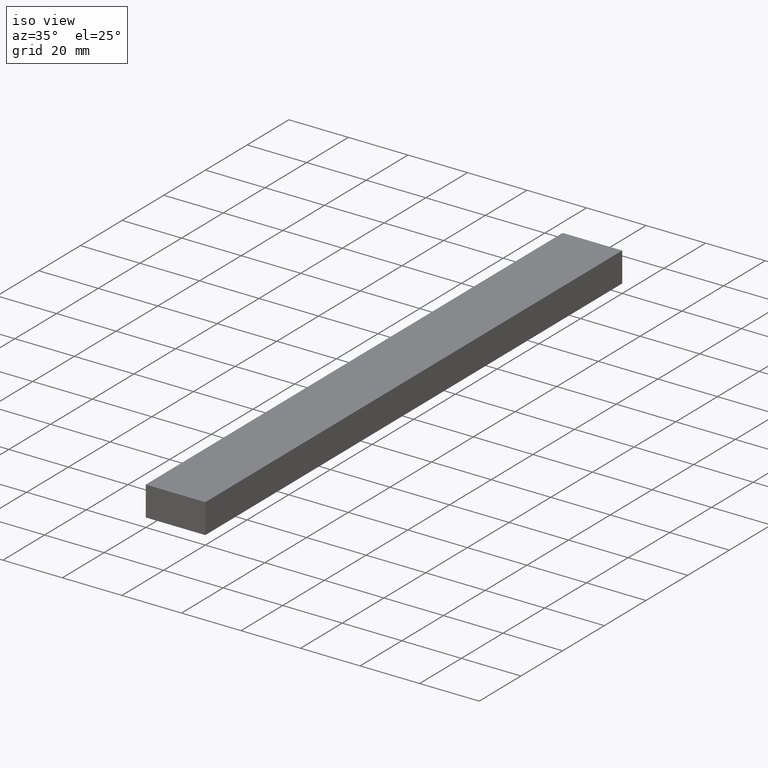
[diagram: clean part render]
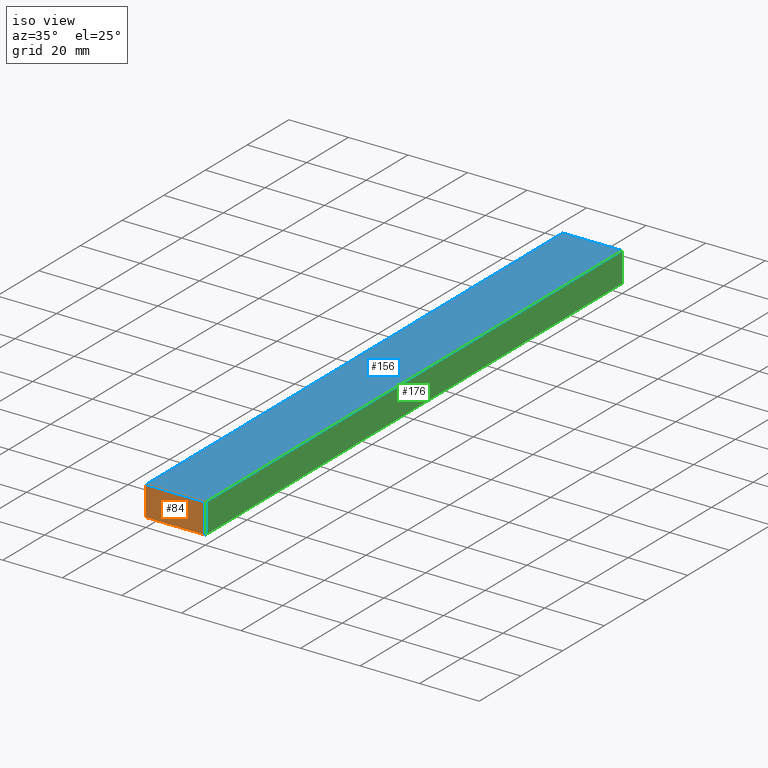
[diagram: same view with three faces highlighted in distinct colors, each labeled with its STEP entity id]
A machine part, iso view with three faces highlighted in distinct colors.
Their STEP definitions:

[orange] entity #84 — the highlighted planar face has unit normal (0, 1, 0).
#1 = DIRECTION ( 'NONE',  ( -0.0000000000000000000, -0.0000000000000000000, 1.000000000000000000 ) ) ;
#15 = VECTOR ( 'NONE', #52, 1000.000000000000000 ) ;
#16 = CARTESIAN_POINT ( 'NONE',  ( 0.0000000000000000000, 0.0000000000000000000, 0.0000000000000000000 ) ) ;
#27 = EDGE_CURVE ( 'NONE', #163, #148, #73, .T. ) ;
#30 = CARTESIAN_POINT ( 'NONE',  ( 20.00000000000000000, 0.0000000000000000000, 0.0000000000000000000 ) ) ;
#52 = DIRECTION ( 'NONE',  ( -1.000000000000000000, -0.0000000000000000000, -0.0000000000000000000 ) ) ;
#54 = ORIENTED_EDGE ( 'NONE', *, *, #27, .T. ) ;
#58 = ORIENTED_EDGE ( 'NONE', *, *, #64, .T. ) ;
#61 = LINE ( 'NONE', #30, #181 ) ;
#64 = EDGE_CURVE ( 'NONE', #148, #103, #104, .T. ) ;
#68 = VECTOR ( 'NONE', #191, 1000.000000000000000 ) ;
#73 = LINE ( 'NONE', #16, #68 ) ;
#75 = DIRECTION ( 'NONE',  ( -0.0000000000000000000, 1.000000000000000000, 0.0000000000000000000 ) ) ;
#84 = ADVANCED_FACE ( 'NONE', ( #213 ), #158, .F. ) ;
#86 = EDGE_CURVE ( 'NONE', #103, #117, #61, .T. ) ;
#87 = DIRECTION ( 'NONE',  ( 1.000000000000000000, -0.0000000000000000000, -0.0000000000000000000 ) ) ;
#95 = CARTESIAN_POINT ( 'NONE',  ( 0.0000000000000000000, 0.0000000000000000000, 0.0000000000000000000 ) ) ;
#97 = AXIS2_PLACEMENT_3D ( 'NONE', #129, #75, #101 ) ;
#101 = DIRECTION ( 'NONE',  ( 1.000000000000000000, 0.0000000000000000000, 0.0000000000000000000 ) ) ;
#103 = VERTEX_POINT ( 'NONE', #225 ) ;
#104 = LINE ( 'NONE', #192, #231 ) ;
#107 = CARTESIAN_POINT ( 'NONE',  ( 20.00000000000000000, 0.0000000000000000000, 10.00000000000000000 ) ) ;
#117 = VERTEX_POINT ( 'NONE', #107 ) ;
#127 = LINE ( 'NONE', #150, #15 ) ;
#129 = CARTESIAN_POINT ( 'NONE',  ( 0.0000000000000000000, 0.0000000000000000000, 0.0000000000000000000 ) ) ;
#148 = VERTEX_POINT ( 'NONE', #95 ) ;
#149 = CARTESIAN_POINT ( 'NONE',  ( 0.0000000000000000000, 0.0000000000000000000, 10.00000000000000000 ) ) ;
#150 = CARTESIAN_POINT ( 'NONE',  ( 0.0000000000000000000, 0.0000000000000000000, 10.00000000000000000 ) ) ;
#157 = ORIENTED_EDGE ( 'NONE', *, *, #86, .T. ) ;
#158 = PLANE ( 'NONE',  #97 ) ;
#163 = VERTEX_POINT ( 'NONE', #149 ) ;
#165 = EDGE_LOOP ( 'NONE', ( #58, #157, #194, #54 ) ) ;
#181 = VECTOR ( 'NONE', #1, 1000.000000000000000 ) ;
#191 = DIRECTION ( 'NONE',  ( -0.0000000000000000000, -0.0000000000000000000, -1.000000000000000000 ) ) ;
#192 = CARTESIAN_POINT ( 'NONE',  ( 0.0000000000000000000, 0.0000000000000000000, 0.0000000000000000000 ) ) ;
#194 = ORIENTED_EDGE ( 'NONE', *, *, #220, .T. ) ;
#213 = FACE_OUTER_BOUND ( 'NONE', #165, .T. ) ;
#220 = EDGE_CURVE ( 'NONE', #117, #163, #127, .T. ) ;
#225 = CARTESIAN_POINT ( 'NONE',  ( 20.00000000000000000, 0.0000000000000000000, 0.0000000000000000000 ) ) ;
#231 = VECTOR ( 'NONE', #87, 1000.000000000000000 ) ;

[blue] entity #156 — the highlighted planar face has unit normal (0, 0, 1).
#4 = VECTOR ( 'NONE', #185, 1000.000000000000000 ) ;
#5 = EDGE_LOOP ( 'NONE', ( #14, #72, #189, #198 ) ) ;
#13 = CARTESIAN_POINT ( 'NONE',  ( 0.0000000000000000000, 1000.000000000000000, 10.00000000000000000 ) ) ;
#14 = ORIENTED_EDGE ( 'NONE', *, *, #220, .F. ) ;
#15 = VECTOR ( 'NONE', #52, 1000.000000000000000 ) ;
#37 = VECTOR ( 'NONE', #184, 1000.000000000000000 ) ;
#44 = VERTEX_POINT ( 'NONE', #70 ) ;
#45 = FACE_OUTER_BOUND ( 'NONE', #5, .T. ) ;
#52 = DIRECTION ( 'NONE',  ( -1.000000000000000000, -0.0000000000000000000, -0.0000000000000000000 ) ) ;
#53 = VECTOR ( 'NONE', #105, 1000.000000000000000 ) ;
#70 = CARTESIAN_POINT ( 'NONE',  ( 0.0000000000000000000, 200.0000000000000000, 10.00000000000000000 ) ) ;
#72 = ORIENTED_EDGE ( 'NONE', *, *, #232, .F. ) ;
#105 = DIRECTION ( 'NONE',  ( -1.000000000000000000, -0.0000000000000000000, -0.0000000000000000000 ) ) ;
#107 = CARTESIAN_POINT ( 'NONE',  ( 20.00000000000000000, 0.0000000000000000000, 10.00000000000000000 ) ) ;
#110 = CARTESIAN_POINT ( 'NONE',  ( 20.00000000000000000, 1000.000000000000000, 10.00000000000000000 ) ) ;
#112 = CARTESIAN_POINT ( 'NONE',  ( 0.0000000000000000000, 200.0000000000000000, 10.00000000000000000 ) ) ;
#117 = VERTEX_POINT ( 'NONE', #107 ) ;
#118 = AXIS2_PLACEMENT_3D ( 'NONE', #110, #169, #226 ) ;
#122 = LINE ( 'NONE', #112, #53 ) ;
#127 = LINE ( 'NONE', #150, #15 ) ;
#136 = LINE ( 'NONE', #146, #4 ) ;
#146 = CARTESIAN_POINT ( 'NONE',  ( 20.00000000000000000, 1000.000000000000000, 10.00000000000000000 ) ) ;
#149 = CARTESIAN_POINT ( 'NONE',  ( 0.0000000000000000000, 0.0000000000000000000, 10.00000000000000000 ) ) ;
#150 = CARTESIAN_POINT ( 'NONE',  ( 0.0000000000000000000, 0.0000000000000000000, 10.00000000000000000 ) ) ;
#156 = ADVANCED_FACE ( 'NONE', ( #45 ), #167, .T. ) ;
#162 = EDGE_CURVE ( 'NONE', #216, #44, #122, .T. ) ;
#163 = VERTEX_POINT ( 'NONE', #149 ) ;
#167 = PLANE ( 'NONE',  #118 ) ;
#169 = DIRECTION ( 'NONE',  ( 0.0000000000000000000, 0.0000000000000000000, 1.000000000000000000 ) ) ;
#184 = DIRECTION ( 'NONE',  ( 0.0000000000000000000, -1.000000000000000000, 0.0000000000000000000 ) ) ;
#185 = DIRECTION ( 'NONE',  ( 0.0000000000000000000, -1.000000000000000000, 0.0000000000000000000 ) ) ;
#187 = CARTESIAN_POINT ( 'NONE',  ( 20.00000000000000000, 200.0000000000000000, 10.00000000000000000 ) ) ;
#189 = ORIENTED_EDGE ( 'NONE', *, *, #162, .T. ) ;
#190 = EDGE_CURVE ( 'NONE', #44, #163, #228, .T. ) ;
#198 = ORIENTED_EDGE ( 'NONE', *, *, #190, .T. ) ;
#216 = VERTEX_POINT ( 'NONE', #187 ) ;
#220 = EDGE_CURVE ( 'NONE', #117, #163, #127, .T. ) ;
#226 = DIRECTION ( 'NONE',  ( 1.000000000000000000, 0.0000000000000000000, 0.0000000000000000000 ) ) ;
#228 = LINE ( 'NONE', #13, #37 ) ;
#232 = EDGE_CURVE ( 'NONE', #216, #117, #136, .T. ) ;

[green] entity #176 — the highlighted planar face has unit normal (1, 0, 0).
#1 = DIRECTION ( 'NONE',  ( -0.0000000000000000000, -0.0000000000000000000, 1.000000000000000000 ) ) ;
#4 = VECTOR ( 'NONE', #185, 1000.000000000000000 ) ;
#8 = EDGE_LOOP ( 'NONE', ( #199, #177, #235, #212 ) ) ;
#22 = FACE_OUTER_BOUND ( 'NONE', #8, .T. ) ;
#30 = CARTESIAN_POINT ( 'NONE',  ( 20.00000000000000000, 0.0000000000000000000, 0.0000000000000000000 ) ) ;
#32 = DIRECTION ( 'NONE',  ( -0.0000000000000000000, -0.0000000000000000000, 1.000000000000000000 ) ) ;
#34 = CARTESIAN_POINT ( 'NONE',  ( 20.00000000000000000, 200.0000000000000000, 0.0000000000000000000 ) ) ;
#42 = EDGE_CURVE ( 'NONE', #88, #103, #142, .T. ) ;
#48 = CARTESIAN_POINT ( 'NONE',  ( 20.00000000000000000, 1000.000000000000000, 0.0000000000000000000 ) ) ;
#61 = LINE ( 'NONE', #30, #181 ) ;
#62 = AXIS2_PLACEMENT_3D ( 'NONE', #48, #135, #180 ) ;
#83 = EDGE_CURVE ( 'NONE', #88, #216, #178, .T. ) ;
#86 = EDGE_CURVE ( 'NONE', #103, #117, #61, .T. ) ;
#88 = VERTEX_POINT ( 'NONE', #34 ) ;
#94 = CARTESIAN_POINT ( 'NONE',  ( 20.00000000000000000, 200.0000000000000000, 0.0000000000000000000 ) ) ;
#103 = VERTEX_POINT ( 'NONE', #225 ) ;
#107 = CARTESIAN_POINT ( 'NONE',  ( 20.00000000000000000, 0.0000000000000000000, 10.00000000000000000 ) ) ;
#117 = VERTEX_POINT ( 'NONE', #107 ) ;
#125 = DIRECTION ( 'NONE',  ( 0.0000000000000000000, -1.000000000000000000, 0.0000000000000000000 ) ) ;
#135 = DIRECTION ( 'NONE',  ( 1.000000000000000000, 0.0000000000000000000, 0.0000000000000000000 ) ) ;
#136 = LINE ( 'NONE', #146, #4 ) ;
#142 = LINE ( 'NONE', #200, #171 ) ;
#146 = CARTESIAN_POINT ( 'NONE',  ( 20.00000000000000000, 1000.000000000000000, 10.00000000000000000 ) ) ;
#171 = VECTOR ( 'NONE', #125, 1000.000000000000000 ) ;
#173 = PLANE ( 'NONE',  #62 ) ;
#176 = ADVANCED_FACE ( 'NONE', ( #22 ), #173, .T. ) ;
#177 = ORIENTED_EDGE ( 'NONE', *, *, #42, .F. ) ;
#178 = LINE ( 'NONE', #94, #182 ) ;
#180 = DIRECTION ( 'NONE',  ( 0.0000000000000000000, 0.0000000000000000000, -1.000000000000000000 ) ) ;
#181 = VECTOR ( 'NONE', #1, 1000.000000000000000 ) ;
#182 = VECTOR ( 'NONE', #32, 1000.000000000000000 ) ;
#185 = DIRECTION ( 'NONE',  ( 0.0000000000000000000, -1.000000000000000000, 0.0000000000000000000 ) ) ;
#187 = CARTESIAN_POINT ( 'NONE',  ( 20.00000000000000000, 200.0000000000000000, 10.00000000000000000 ) ) ;
#199 = ORIENTED_EDGE ( 'NONE', *, *, #86, .F. ) ;
#200 = CARTESIAN_POINT ( 'NONE',  ( 20.00000000000000000, 1000.000000000000000, 0.0000000000000000000 ) ) ;
#212 = ORIENTED_EDGE ( 'NONE', *, *, #232, .T. ) ;
#216 = VERTEX_POINT ( 'NONE', #187 ) ;
#225 = CARTESIAN_POINT ( 'NONE',  ( 20.00000000000000000, 0.0000000000000000000, 0.0000000000000000000 ) ) ;
#232 = EDGE_CURVE ( 'NONE', #216, #117, #136, .T. ) ;
#235 = ORIENTED_EDGE ( 'NONE', *, *, #83, .T. ) ;